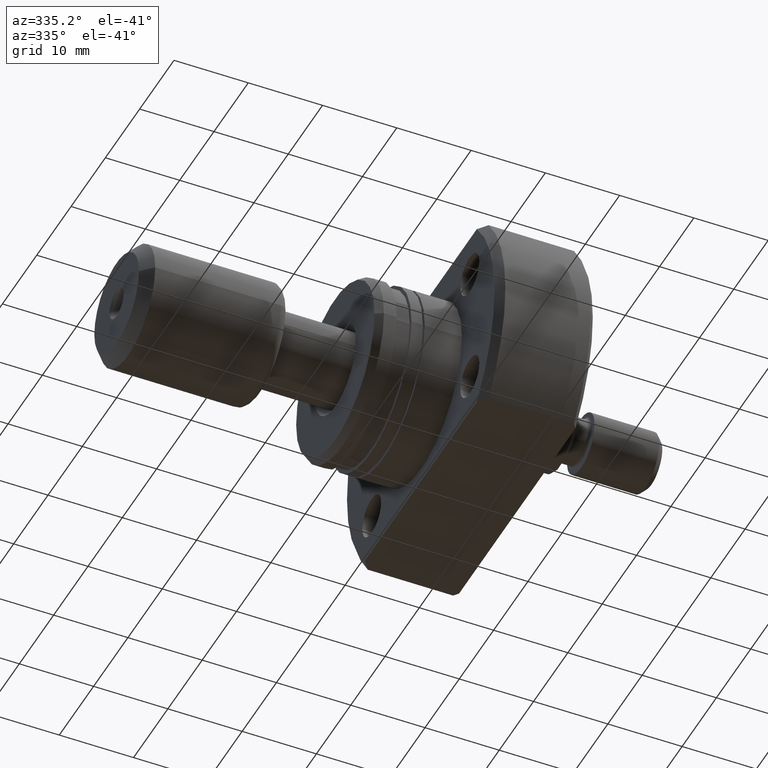
[diagram: clean part render]
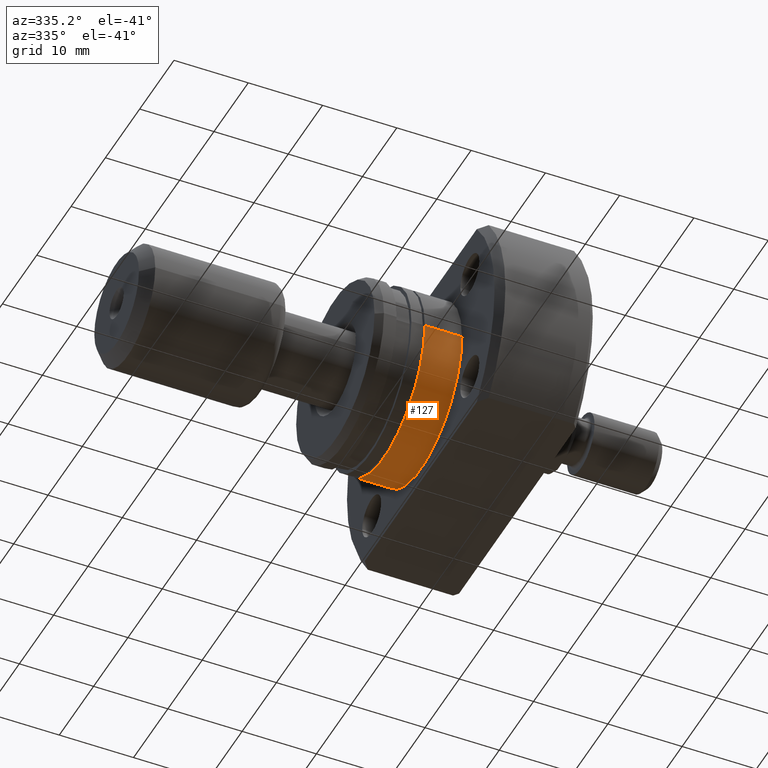
[diagram: same view with one face highlighted and labeled with its STEP entity id]
A machine part, auxiliary view. The second image highlights one B-rep face of the part: STEP entity #127.
In plain terms, the highlighted cylindrical surface (partial cylindrical patch) has radius 12 mm, axis along (1, 0, 0).
Its self-contained STEP definition (entity closure, byte-faithful):
#127 = ADVANCED_FACE ( 'NONE', ( #357 ), #1533, .T. ) ;
#341 = VECTOR ( 'NONE', #1555, 1000.000000000000000 ) ;
#357 = FACE_OUTER_BOUND ( 'NONE', #2168, .T. ) ;
#387 = DIRECTION ( 'NONE',  ( 0.000000000000000000, 1.000000000000000000, 0.000000000000000000 ) ) ;
#441 = AXIS2_PLACEMENT_3D ( 'NONE', #998, #1781, #387 ) ;
#602 = CARTESIAN_POINT ( 'NONE',  ( 11.49999999999977973, 11.99999999999999467, 0.000000000000000000 ) ) ;
#637 = CARTESIAN_POINT ( 'NONE',  ( 6.499999999999780620, 11.99999999999999822, 0.000000000000000000 ) ) ;
#640 = CARTESIAN_POINT ( 'NONE',  ( 24.50000000000000355, 11.99999999999999645, 0.000000000000000000 ) ) ;
#741 = VECTOR ( 'NONE', #3286, 1000.000000000000000 ) ;
#754 = EDGE_CURVE ( 'NONE', #904, #967, #1967, .T. ) ;
#771 = CARTESIAN_POINT ( 'NONE',  ( 11.49999999999977973, 5.748342118459364061E-18, 0.000000000000000000 ) ) ;
#904 = VERTEX_POINT ( 'NONE', #1092 ) ;
#967 = VERTEX_POINT ( 'NONE', #637 ) ;
#998 = CARTESIAN_POINT ( 'NONE',  ( 24.50000000000000355, 1.224646799150062205E-17, 0.000000000000000000 ) ) ;
#1092 = CARTESIAN_POINT ( 'NONE',  ( 6.499999999999780620, -12.00000000000000000, 1.469576158976823947E-15 ) ) ;
#1113 = ORIENTED_EDGE ( 'NONE', *, *, #2083, .F. ) ;
#1193 = LINE ( 'NONE', #640, #341 ) ;
#1230 = ORIENTED_EDGE ( 'NONE', *, *, #1717, .F. ) ;
#1376 = DIRECTION ( 'NONE',  ( 0.000000000000000000, 1.000000000000000000, 0.000000000000000000 ) ) ;
#1533 = CYLINDRICAL_SURFACE ( 'NONE', #441, 11.99999999999999645 ) ;
#1555 = DIRECTION ( 'NONE',  ( 1.000000000000000000, 4.998558363877804092E-19, -0.000000000000000000 ) ) ;
#1615 = AXIS2_PLACEMENT_3D ( 'NONE', #2716, #3560, #2674 ) ;
#1717 = EDGE_CURVE ( 'NONE', #2939, #1939, #3594, .T. ) ;
#1781 = DIRECTION ( 'NONE',  ( 1.000000000000000000, 4.998558363877804092E-19, -0.000000000000000000 ) ) ;
#1830 = ORIENTED_EDGE ( 'NONE', *, *, #754, .T. ) ;
#1931 = DIRECTION ( 'NONE',  ( 1.000000000000000000, 4.998558363877804092E-19, -0.000000000000000000 ) ) ;
#1939 = VERTEX_POINT ( 'NONE', #602 ) ;
#1967 = CIRCLE ( 'NONE', #1615, 11.99999999999999822 ) ;
#1973 = ORIENTED_EDGE ( 'NONE', *, *, #2883, .T. ) ;
#1987 = AXIS2_PLACEMENT_3D ( 'NONE', #771, #1931, #1376 ) ;
#2083 = EDGE_CURVE ( 'NONE', #904, #2939, #2496, .T. ) ;
#2168 = EDGE_LOOP ( 'NONE', ( #1113, #1830, #1973, #1230 ) ) ;
#2362 = CARTESIAN_POINT ( 'NONE',  ( 11.49999999999977973, -11.99999999999999467, 1.469576158976823356E-15 ) ) ;
#2496 = LINE ( 'NONE', #3315, #741 ) ;
#2674 = DIRECTION ( 'NONE',  ( 0.000000000000000000, 1.000000000000000000, 0.000000000000000000 ) ) ;
#2716 = CARTESIAN_POINT ( 'NONE',  ( 6.499999999999780620, 3.249062936520462593E-18, 0.000000000000000000 ) ) ;
#2883 = EDGE_CURVE ( 'NONE', #967, #1939, #1193, .T. ) ;
#2939 = VERTEX_POINT ( 'NONE', #2362 ) ;
#3286 = DIRECTION ( 'NONE',  ( 1.000000000000000000, 4.998558363877804092E-19, -0.000000000000000000 ) ) ;
#3315 = CARTESIAN_POINT ( 'NONE',  ( 24.50000000000000355, -11.99999999999999645, 1.469576158976823553E-15 ) ) ;
#3560 = DIRECTION ( 'NONE',  ( 1.000000000000000000, 4.998558363877804092E-19, -0.000000000000000000 ) ) ;
#3594 = CIRCLE ( 'NONE', #1987, 11.99999999999999467 ) ;